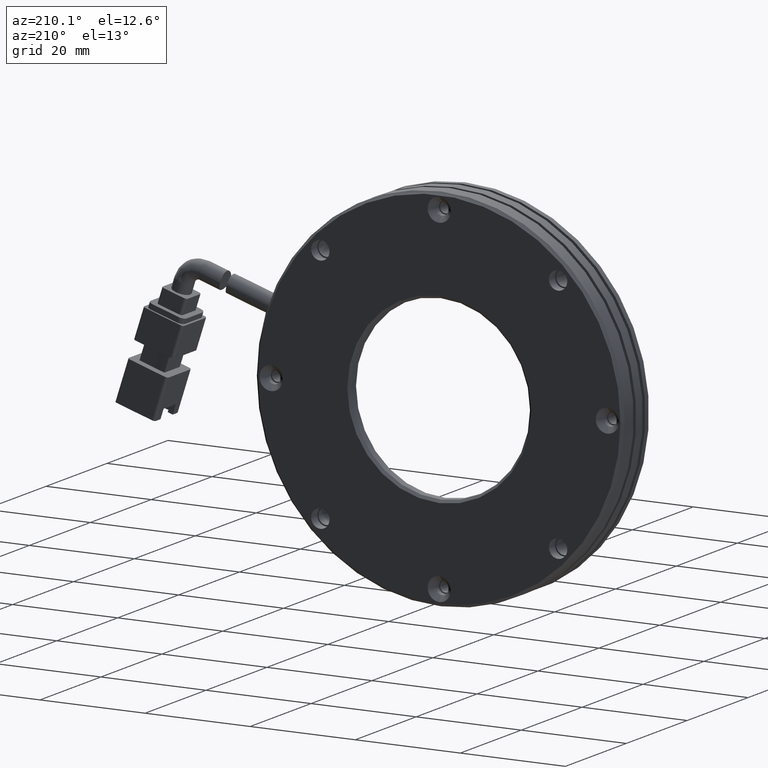
[diagram: clean part render]
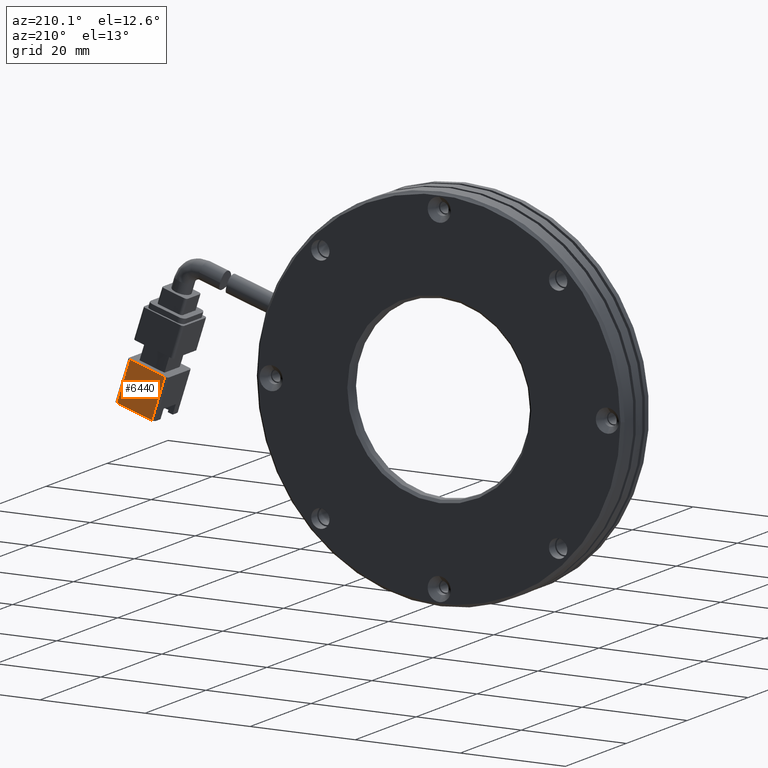
[diagram: same view with one face highlighted and labeled with its STEP entity id]
A machine part, auxiliary view. The second image highlights one B-rep face of the part: STEP entity #6440.
In plain terms, the highlighted planar face has unit normal (0, -1, 0).
Its self-contained STEP definition (entity closure, byte-faithful):
#1873 = EDGE_CURVE ( 'NONE', #18029, #36716, #25768, .T. ) ;
#1911 = VECTOR ( 'NONE', #28380, 1000.000000000000100 ) ;
#2499 = LINE ( 'NONE', #26551, #34603 ) ;
#4675 = LINE ( 'NONE', #25772, #21204 ) ;
#6440 = ADVANCED_FACE ( 'NONE', ( #30221 ), #35481, .F. ) ;
#6482 = EDGE_CURVE ( 'NONE', #23891, #18029, #2499, .T. ) ;
#7121 = DIRECTION ( 'NONE',  ( 0.3090169943749484500, 1.468953706219544100E-018, -0.9510565162951532000 ) ) ;
#8111 = CARTESIAN_POINT ( 'NONE',  ( 56.21435137670771100, 12.26020291540428200, -7.743537499637003700 ) ) ;
#10925 = ORIENTED_EDGE ( 'NONE', *, *, #23821, .F. ) ;
#10991 = DIRECTION ( 'NONE',  ( 0.9510565162951532000, 1.239088197126295300E-016, 0.3090169943749484500 ) ) ;
#11219 = CARTESIAN_POINT ( 'NONE',  ( 53.74221542170811700, 12.26020291540428200, -0.1350853692757710600 ) ) ;
#11779 = EDGE_CURVE ( 'NONE', #36716, #33892, #20931, .T. ) ;
#12092 = EDGE_LOOP ( 'NONE', ( #26750, #12580, #10925, #14136 ) ) ;
#12580 = ORIENTED_EDGE ( 'NONE', *, *, #6482, .F. ) ;
#14136 = ORIENTED_EDGE ( 'NONE', *, *, #11779, .F. ) ;
#17089 = DIRECTION ( 'NONE',  ( 1.182982220733096200E-016, -1.000000000000000000, 3.689287304970813900E-017 ) ) ;
#18029 = VERTEX_POINT ( 'NONE', #8111 ) ;
#18812 = CARTESIAN_POINT ( 'NONE',  ( 56.21435137670771100, 12.26020291540428200, -7.743537499637005400 ) ) ;
#20931 = LINE ( 'NONE', #37446, #28240 ) ;
#21204 = VECTOR ( 'NONE', #7121, 1000.000000000000100 ) ;
#23821 = EDGE_CURVE ( 'NONE', #33892, #23891, #4675, .T. ) ;
#23891 = VERTEX_POINT ( 'NONE', #32852 ) ;
#25217 = DIRECTION ( 'NONE',  ( -0.9510565162951532000, -1.239088197126295300E-016, -0.3090169943749484500 ) ) ;
#25768 = LINE ( 'NONE', #18812, #1911 ) ;
#25772 = CARTESIAN_POINT ( 'NONE',  ( 49.55695576264167800, 12.26020291540428200, -9.906656460261629600 ) ) ;
#26551 = CARTESIAN_POINT ( 'NONE',  ( 49.55695576264164300, 12.26020291540428200, -9.906656460261640300 ) ) ;
#26750 = ORIENTED_EDGE ( 'NONE', *, *, #1873, .F. ) ;
#28240 = VECTOR ( 'NONE', #25217, 1000.000000000000100 ) ;
#28380 = DIRECTION ( 'NONE',  ( -0.3090169943749484500, -1.468953706219544100E-018, 0.9510565162951532000 ) ) ;
#30221 = FACE_OUTER_BOUND ( 'NONE', #12092, .T. ) ;
#31000 = CARTESIAN_POINT ( 'NONE',  ( 47.08481980764207000, 12.26020291540428200, -2.298204329900404500 ) ) ;
#32852 = CARTESIAN_POINT ( 'NONE',  ( 49.55695576264165700, 12.26020291540428200, -9.906656460261636700 ) ) ;
#33892 = VERTEX_POINT ( 'NONE', #31000 ) ;
#34603 = VECTOR ( 'NONE', #10991, 1000.000000000000100 ) ;
#35481 = PLANE ( 'NONE',  #38023 ) ;
#35758 = CARTESIAN_POINT ( 'NONE',  ( 49.55695576264164300, 12.26020291540428200, -9.906656460261640300 ) ) ;
#36716 = VERTEX_POINT ( 'NONE', #11219 ) ;
#37446 = CARTESIAN_POINT ( 'NONE',  ( 47.08481980764204900, 12.26020291540428200, -2.298204329900408000 ) ) ;
#38023 = AXIS2_PLACEMENT_3D ( 'NONE', #35758, #17089, #38857 ) ;
#38857 = DIRECTION ( 'NONE',  ( -0.3090169943749484500, -1.468953706219544100E-018, 0.9510565162951532000 ) ) ;